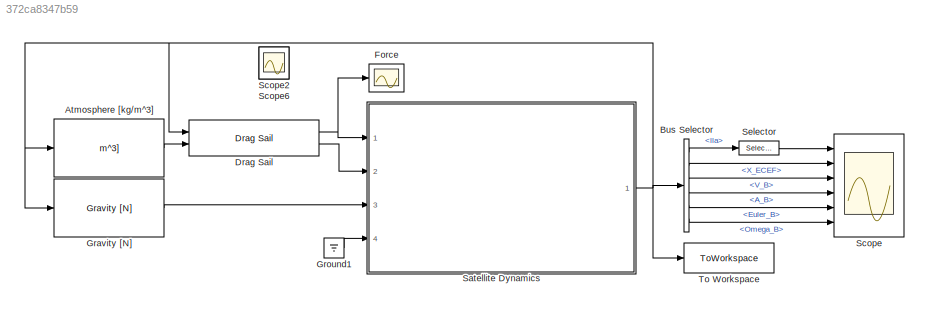
MODEL slx_372ca8347b59
KIND model
CONFIG AbsTol = auto
CONFIG EnableMultiTasking = off
CONFIG FixedStep = 10
CONFIG MaxStep = auto
CONFIG MinStep = auto
CONFIG RelTol = 1e-3
CONFIG SampleTimeConstraint = Unconstrained
CONFIG Solver = ode14x
CONFIG SolverName = ode14x
CONFIG StartTime = 0.0
CONFIG StopTime = 16*24*60*60
BLOCK [Reference] Atmosphere [kg//m^3]  REF=scars_library/Environment/Atmosphere [kg//m^3]  (lib defined in slx_0992aaab4a30)
  Ports = [1, 1]
  SourceBlock = scars_library/Environment/Atmosphere [kg//m^3]
BLOCK [BusSelector] Bus Selector
  OutputAsBus = off
  OutputSignals = lla,X_ECEF,V_B,A_B,Euler_B,Omega_B
  Ports = [1, 6]
BLOCK [Reference] Drag Sail  REF=scars_library/Actuators/Drag Sail  (lib defined in slx_0992aaab4a30)
  Ports = [2, 2]
  SourceBlock = scars_library/Actuators/Drag Sail
BLOCK [Scope] Force
  Floating = off
  NumInputPorts = 1
  Ports = [1]
  ScopeSpecificationString = Simulink.scopes.TimeScopeBlockCfg('CurrentConfiguration', extmgr.ConfigurationSet(extmgr.Configuration('Core','General UI',true),extmgr.Configuration('Core','Source UI',true),extmgr.Configuration('Sources','WiredSimulink',true,'DataLoggingVariableName','ScopeData1'),extmgr.Configuration('Visuals','Time Domain',true,'SerializedDisplays',{struct('MinYLimReal','-0.00005','MaxYLimReal','0.00005','YLab...<+1662ch>
BLOCK [Reference] Gravity [N]  REF=scars_library/Environment/Gravity [N]  (lib defined in slx_0992aaab4a30)
  Ports = [1, 1]
  SourceBlock = scars_library/Environment/Gravity [N]
  SourceType = Gravity
BLOCK [Ground] Ground1
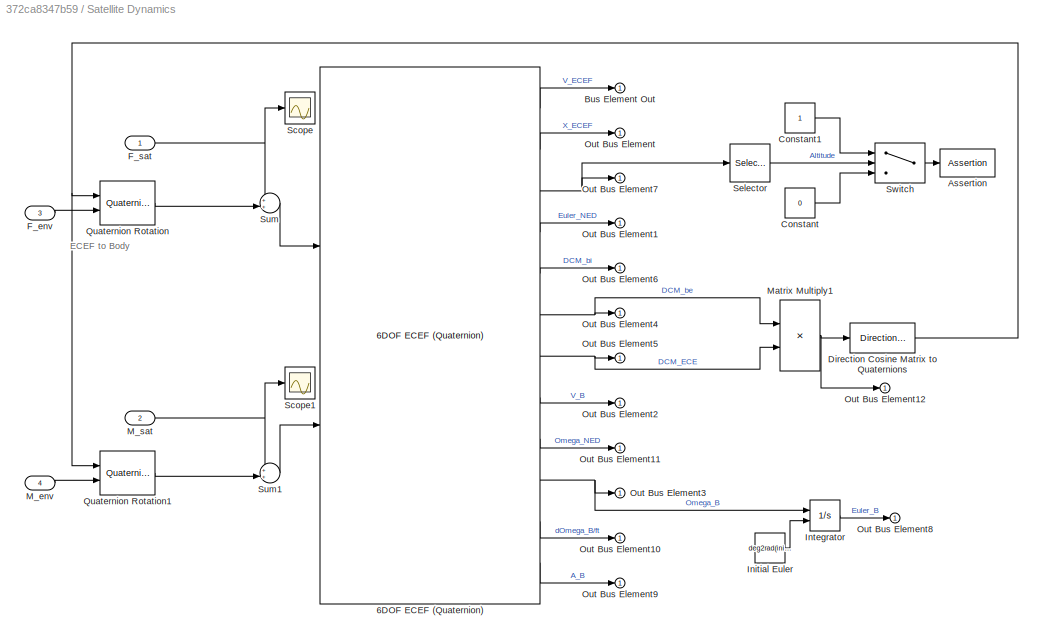
BLOCK [SubSystem] Satellite Dynamics
  AncestorBlock = scars_library/Advanced/Satellite Dynamics
  Ports = [4, 1]
  RequestExecContextInheritance = off
BLOCK [Reference] Satellite Dynamics/6DOF ECEF (Quaternion)  REF=aerolib6dof2/6DOF ECEF (Quaternion)
  Ports = [2, 12]
  SourceBlock = aerolib6dof2/6DOF ECEF (Quaternion)
  SourceProductBaseCode = AE
  SourceProductName = Aerospace Blockset
  SourceType = 6DOF EoM (ECEF)
BLOCK [Assertion] Satellite Dynamics/Assertion
BLOCK [Outport] Satellite Dynamics/Bus Element Out
  IconDisplay = Port number
BLOCK [Constant] Satellite Dynamics/Constant
  Value = 0
BLOCK [Constant] Satellite Dynamics/Constant1
BLOCK [Reference] Satellite Dynamics/Direction Cosine Matrix to Quaternions  REF=sharedtransform/Direction Cosine Matrix 
to Quaternions
  Ports = [1, 1]
  SourceBlock = sharedtransform/Direction Cosine Matrix \nto Quaternions
  SourceProductBaseCode = AE
  SourceProductName = Aerospace Blockset
  SourceType = DCM2Quaternion
BLOCK [Inport] Satellite Dynamics/F_env
  IconDisplay = Port number
  Port = 3
BLOCK [Inport] Satellite Dynamics/F_sat
  IconDisplay = Port number
BLOCK [Constant] Satellite Dynamics/Initial Euler
  Value = deg2rad(initEuler)
BLOCK [Integrator] Satellite Dynamics/Integrator
  InitialConditionSource = external
  Ports = [2, 1]
  WrapState = on
BLOCK [Inport] Satellite Dynamics/M_env
  IconDisplay = Port number
  Port = 4
BLOCK [Inport] Satellite Dynamics/M_sat
  IconDisplay = Port number
  Port = 2
BLOCK [Product] Satellite Dynamics/Matrix Multiply1
  InputSameDT = off
  Multiplication = Matrix(*)
  OutDataTypeStr = Inherit: Inherit via internal rule
  Ports = [2, 1]
  RndMeth = Floor
  SaturateOnIntegerOverflow = off
BLOCK [Outport] Satellite Dynamics/Out Bus Element
  IconDisplay = Port number
BLOCK [Outport] Satellite Dynamics/Out Bus Element1
  IconDisplay = Port number
BLOCK [Outport] Satellite Dynamics/Out Bus Element10
  IconDisplay = Port number
BLOCK [Outport] Satellite Dynamics/Out Bus Element11
  IconDisplay = Port number
BLOCK [Outport] Satellite Dynamics/Out Bus Element12
  IconDisplay = Port number
BLOCK [Outport] Satellite Dynamics/Out Bus Element2
  IconDisplay = Port number
BLOCK [Outport] Satellite Dynamics/Out Bus Element3
  IconDisplay = Port number
BLOCK [Outport] Satellite Dynamics/Out Bus Element4
  IconDisplay = Port number
BLOCK [Outport] Satellite Dynamics/Out Bus Element5
  IconDisplay = Port number
BLOCK [Outport] Satellite Dynamics/Out Bus Element6
  IconDisplay = Port number
BLOCK [Outport] Satellite Dynamics/Out Bus Element7
  IconDisplay = Port number
BLOCK [Outport] Satellite Dynamics/Out Bus Element8
  IconDisplay = Port number
BLOCK [Outport] Satellite Dynamics/Out Bus Element9
  IconDisplay = Port number
BLOCK [Reference] Satellite Dynamics/Quaternion Rotation  REF=aerolibutil/Quaternion
Rotation
  Ports = [2, 1]
  SourceBlock = aerolibutil/Quaternion\nRotation
  SourceProductBaseCode = AE
  SourceProductName = Aerospace Blockset
  SourceType = Quaternion Rotation
BLOCK [Reference] Satellite Dynamics/Quaternion Rotation1  REF=aerolibutil/Quaternion
Rotation
  Ports = [2, 1]
  SourceBlock = aerolibutil/Quaternion\nRotation
  SourceProductBaseCode = AE
  SourceProductName = Aerospace Blockset
  SourceType = Quaternion Rotation
BLOCK [Scope] Satellite Dynamics/Scope
  Floating = off
  NumInputPorts = 1
  Ports = [1]
  ScopeSpecificationString = Simulink.scopes.TimeScopeBlockCfg('CurrentConfiguration', extmgr.ConfigurationSet(extmgr.Configuration('Core','General UI',true),extmgr.Configuration('Core','Source UI',true),extmgr.Configuration('Sources','WiredSimulink',true,'DataLoggingVariableName','ScopeData1'),extmgr.Configuration('Visuals','Time Domain',true,'SerializedDisplays',{struct('MinYLimReal','-0.00005','MaxYLimReal','0.00007','YLab...<+1439ch>
BLOCK [Scope] Satellite Dynamics/Scope1
  Floating = off
  NumInputPorts = 1
  Ports = [1]
  ScopeSpecificationString = Simulink.scopes.TimeScopeBlockCfg('CurrentConfiguration', extmgr.ConfigurationSet(extmgr.Configuration('Core','General UI',true),extmgr.Configuration('Core','Source UI',true),extmgr.Configuration('Sources','WiredSimulink',true,'DataLoggingVariableName','ScopeData2'),extmgr.Configuration('Visuals','Time Domain',true,'SerializedDisplays',{struct('MinYLimReal','-0.00001','MaxYLimReal','0.00011','YLab...<+1438ch>
BLOCK [Selector] Satellite Dynamics/Selector
  IndexOptions = Index vector (dialog)
  Indices = 3
  InputPortWidth = 3
  OutputSizes = 1
  Ports = [1, 1]
BLOCK [Sum] Satellite Dynamics/Sum
  IconShape = round
  InputSameDT = off
  Inputs = ++|
  OutDataTypeStr = Inherit: Inherit via internal rule
  Ports = [2, 1]
  SaturateOnIntegerOverflow = off
BLOCK [Sum] Satellite Dynamics/Sum1
  IconShape = round
  InputSameDT = off
  Inputs = ++|
  OutDataTypeStr = Inherit: Inherit via internal rule
  Ports = [2, 1]
  SaturateOnIntegerOverflow = off
BLOCK [Switch] Satellite Dynamics/Switch
  Criteria = u2 > Threshold
  InputSameDT = off
  SaturateOnIntegerOverflow = off
  Threshold = 100e3
BLOCK [Scope] Scope
  Floating = off
  NumInputPorts = 6
  Ports = [6]
  ScopeSpecificationString = Simulink.scopes.TimeScopeBlockCfg('CurrentConfiguration', extmgr.ConfigurationSet(extmgr.Configuration('Core','General UI',true),extmgr.Configuration('Core','Source UI',true),extmgr.Configuration('Sources','WiredSimulink',true),extmgr.Configuration('Visuals','Time Domain',true,'SerializedDisplays',{struct('MinYLimReal','566968.67815','MaxYLimReal','610460.46715','YLabelReal','','MinYLimMag','56696...<+5074ch>
BLOCK [Scope] Scope2
  Floating = off
  IOType = viewer
  NumInputPorts = 1
  Ports = []
  ScopeSpecificationString = Simulink.scopes.TimeScopeBlockCfg('CurrentConfiguration', extmgr.ConfigurationSet(extmgr.Configuration('Core','General UI',true),extmgr.Configuration('Core','Source UI',true),extmgr.Configuration('Sources','WiredSimulink',true,'DataLoggingVariableName','ScopeData1'),extmgr.Configuration('Visuals','Time Domain',true,'SerializedDisplays',{struct('MinYLimReal','-1.25','MaxYLimReal','1.25','YLabelReal...<+5002ch>
BLOCK [Scope] Scope6
  Floating = off
  IOType = viewer
  NumInputPorts = 1
  Ports = []
  ScopeSpecificationString = Simulink.scopes.TimeScopeBlockCfg('CurrentConfiguration', extmgr.ConfigurationSet(extmgr.Configuration('Core','General UI',true),extmgr.Configuration('Core','Source UI',true),extmgr.Configuration('Sources','WiredSimulink',true,'DataLoggingVariableName','ScopeData3'),extmgr.Configuration('Visuals','Time Domain',true,'SerializedDisplays',{struct('MinYLimReal','-1.72451','MaxYLimReal','9.37581','YLab...<+3540ch>
BLOCK [Selector] Selector
  IndexOptions = Index vector (dialog)
  Indices = 3
  InputPortWidth = 3
  OutputSizes = 1
  Ports = [1, 1]
BLOCK [ToWorkspace] To Workspace
  FixptAsFi = on
  MaxDataPoints = inf
  Ports = [1]
  SampleTime = -1
  SaveFormat = Timeseries
  VariableName = SatStates
ANNOTATION Satellite Dynamics: ECEF to Body
LINE Atmosphere [kg//m^3]:1 -> Drag Sail:2
LINE Bus Selector:1 -> Selector:1
LINE Bus Selector:2 -> Scope:2
LINE Bus Selector:3 -> Scope:3
LINE Bus Selector:4 -> Scope:4
LINE Bus Selector:5 -> Scope:5
LINE Bus Selector:6 -> Scope:6
NET Drag Sail:1 -> Force:1, Satellite Dynamics:1
LINE Drag Sail:2 -> Satellite Dynamics:2
LINE Gravity [N]:1 -> Satellite Dynamics:3
LINE Ground1:1 -> Satellite Dynamics:4
NET Satellite Dynamics:1 -> Atmosphere [kg//m^3]:1, Bus Selector:1, Drag Sail:1, Gravity [N]:1, To Workspace:1
LINE Selector:1 -> Scope:1
note: NET lines group one-source signal fan-out (src -> all destinations, sorted); 1:1 wires keep LINE
